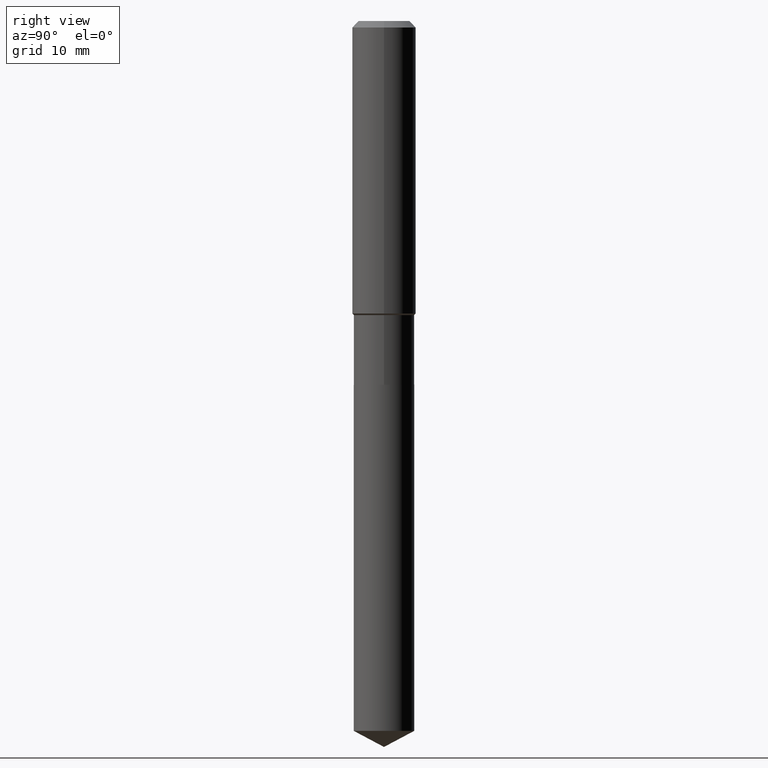
[diagram: clean part render]
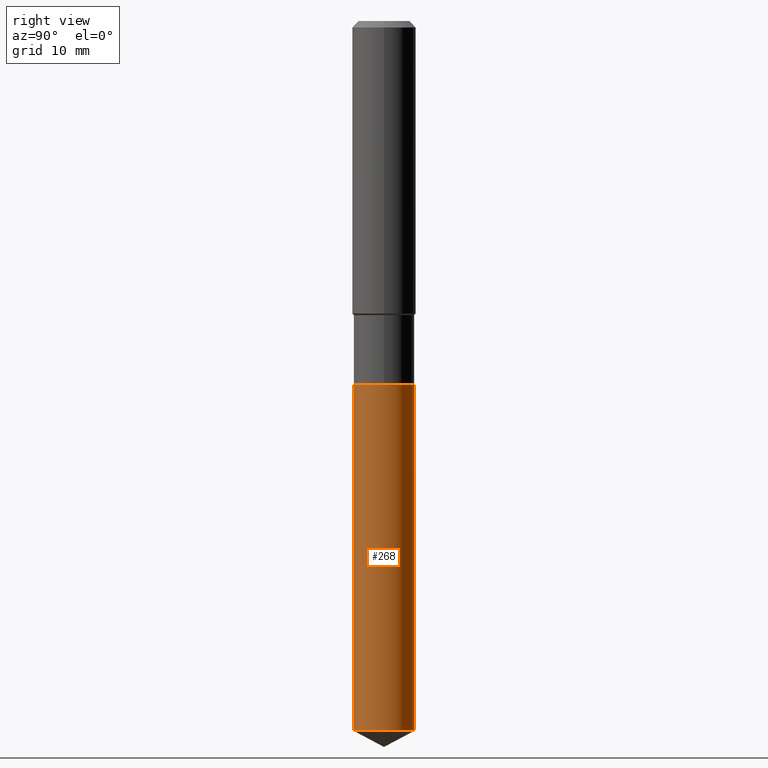
[diagram: same view with one face highlighted and labeled with its STEP entity id]
A machine part, right view. The second image highlights one B-rep face of the part: STEP entity #268.
In plain terms, the highlighted cylindrical surface (edge-blend (fillet) strip) has radius 3.7998 mm, axis along (-0, 0, 1).
Its self-contained STEP definition (entity closure, byte-faithful):
#23 = DIRECTION ( 'NONE',  ( -6.982962677686265922E-15, -1.000000000000000000, 3.652203200085913145E-15 ) ) ;
#25 = CARTESIAN_POINT ( 'NONE',  ( 1.062971932697195743E-15, 0.1495999999999937102, -1.795300000000000562 ) ) ;
#27 = VECTOR ( 'NONE', #158, 39.37007874015748143 ) ;
#44 = EDGE_CURVE ( 'NONE', #490, #115, #87, .T. ) ;
#57 = DIRECTION ( 'NONE',  ( -2.445496282111016884E-29, 3.491441991753452634E-15, 1.000000000000000000 ) ) ;
#73 = ORIENTED_EDGE ( 'NONE', *, *, #130, .F. ) ;
#78 = CIRCLE ( 'NONE', #127, 0.1496000000000000107 ) ;
#87 = LINE ( 'NONE', #464, #27 ) ;
#93 = CYLINDRICAL_SURFACE ( 'NONE', #177, 0.1496000000000000107 ) ;
#97 = EDGE_CURVE ( 'NONE', #339, #148, #133, .T. ) ;
#103 = ORIENTED_EDGE ( 'NONE', *, *, #144, .T. ) ;
#115 = VERTEX_POINT ( 'NONE', #25 ) ;
#116 = CARTESIAN_POINT ( 'NONE',  ( 1.062971932697195546E-15, 0.1495999999999878260, -3.503156269023444125 ) ) ;
#127 = AXIS2_PLACEMENT_3D ( 'NONE', #164, #275, #161 ) ;
#130 = EDGE_CURVE ( 'NONE', #148, #115, #243, .T. ) ;
#133 = LINE ( 'NONE', #238, #272 ) ;
#144 = EDGE_CURVE ( 'NONE', #339, #490, #78, .T. ) ;
#148 = VERTEX_POINT ( 'NONE', #172 ) ;
#158 = DIRECTION ( 'NONE',  ( -2.445496282111017164E-29, 3.491441991753452240E-15, 1.000000000000000000 ) ) ;
#159 = ORIENTED_EDGE ( 'NONE', *, *, #97, .F. ) ;
#161 = DIRECTION ( 'NONE',  ( -6.982962677686266711E-15, -1.000000000000000000, 3.652203200085913145E-15 ) ) ;
#164 = CARTESIAN_POINT ( 'NONE',  ( 8.566906304021000333E-29, -1.223113754117293109E-14, -3.503156269023443237 ) ) ;
#172 = CARTESIAN_POINT ( 'NONE',  ( -1.044651216581821425E-15, -0.1496000000000062835, -1.795299999999999452 ) ) ;
#173 = CARTESIAN_POINT ( 'NONE',  ( -1.044651216581780009E-15, -0.1496000000000122510, -3.503156269023442793 ) ) ;
#177 = AXIS2_PLACEMENT_3D ( 'NONE', #242, #57, #205 ) ;
#205 = DIRECTION ( 'NONE',  ( -6.982962677686266711E-15, -1.000000000000000000, 3.652203200085913145E-15 ) ) ;
#214 = EDGE_LOOP ( 'NONE', ( #103, #284, #73, #159 ) ) ;
#238 = CARTESIAN_POINT ( 'NONE',  ( -1.044651216581821622E-15, -0.1496000000000062835, -1.795299999999999452 ) ) ;
#242 = CARTESIAN_POINT ( 'NONE',  ( 4.390350147744175670E-29, -6.268256447625099205E-15, -1.795300000000000118 ) ) ;
#243 = CIRCLE ( 'NONE', #280, 0.1496000000000000107 ) ;
#268 = ADVANCED_FACE ( 'NONE', ( #435 ), #93, .T. ) ;
#272 = VECTOR ( 'NONE', #274, 39.37007874015748143 ) ;
#274 = DIRECTION ( 'NONE',  ( -2.445496282111017164E-29, 3.491441991753452240E-15, 1.000000000000000000 ) ) ;
#275 = DIRECTION ( 'NONE',  ( -2.445496282111016884E-29, 3.491441991753452634E-15, 1.000000000000000000 ) ) ;
#280 = AXIS2_PLACEMENT_3D ( 'NONE', #440, #402, #23 ) ;
#284 = ORIENTED_EDGE ( 'NONE', *, *, #44, .T. ) ;
#339 = VERTEX_POINT ( 'NONE', #173 ) ;
#402 = DIRECTION ( 'NONE',  ( -2.445496282111016884E-29, 3.491441991753452634E-15, 1.000000000000000000 ) ) ;
#435 = FACE_OUTER_BOUND ( 'NONE', #214, .T. ) ;
#440 = CARTESIAN_POINT ( 'NONE',  ( 4.390350147744175670E-29, -6.268256447625099205E-15, -1.795300000000000118 ) ) ;
#464 = CARTESIAN_POINT ( 'NONE',  ( 1.062971932697153933E-15, 0.1495999999999937657, -1.795300000000000562 ) ) ;
#490 = VERTEX_POINT ( 'NONE', #116 ) ;